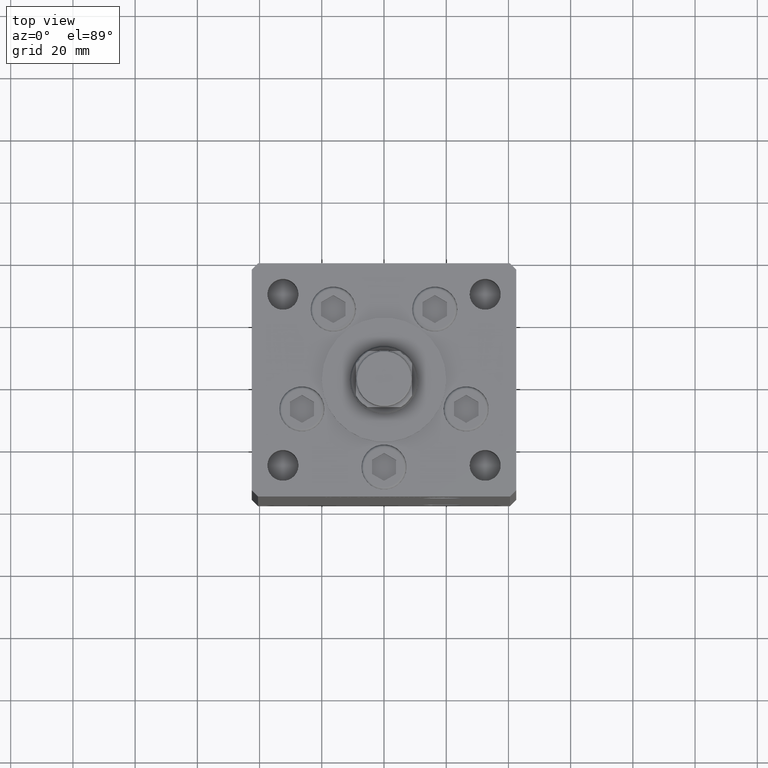
[diagram: clean part render]
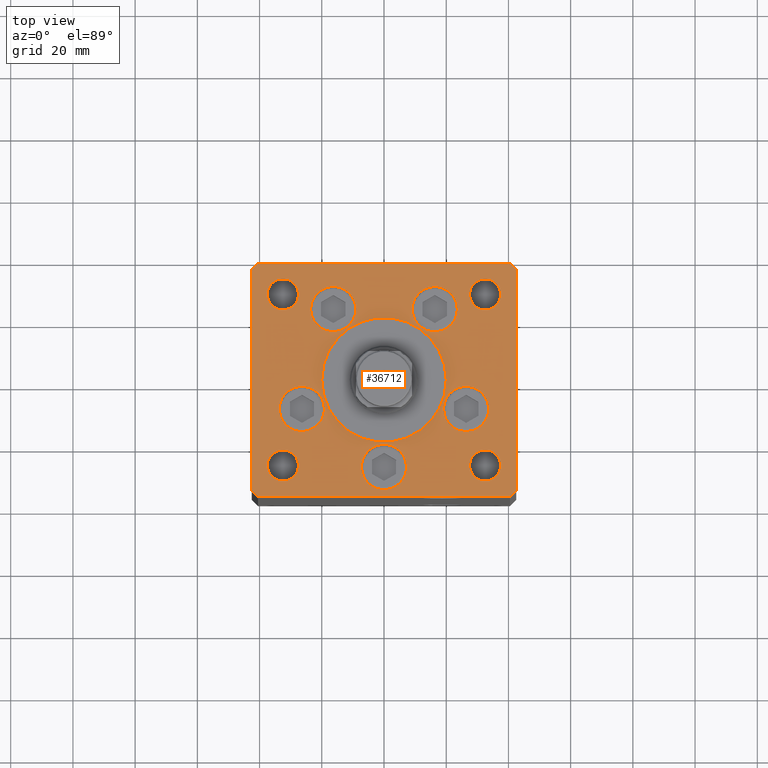
[diagram: same view with one face highlighted and labeled with its STEP entity id]
A machine part, top view. The second image highlights one B-rep face of the part: STEP entity #36712.
In plain terms, the highlighted planar face has unit normal (0, 0, 1).
Its self-contained STEP definition (entity closure, byte-faithful):
#70 = DIRECTION ( 'NONE',  ( 0.000000000000000000, 0.000000000000000000, 1.000000000000000000 ) ) ;
#326 = DIRECTION ( 'NONE',  ( 1.000000000000000000, 0.000000000000000000, 0.000000000000000000 ) ) ;
#378 = CARTESIAN_POINT ( 'NONE',  ( -23.57291334290544071, 22.74999999999999289, 0.000000000000000000 ) ) ;
#570 = AXIS2_PLACEMENT_3D ( 'NONE', #27981, #44247, #50372 ) ;
#675 = CARTESIAN_POINT ( 'NONE',  ( 32.50000000000000000, 27.49999999999999645, 0.000000000000000000 ) ) ;
#783 = DIRECTION ( 'NONE',  ( -0.7071067811865524577, 0.7071067811865426878, 0.000000000000000000 ) ) ;
#972 = DIRECTION ( 'NONE',  ( 1.000000000000000000, 0.000000000000000000, 0.000000000000000000 ) ) ;
#1152 = VECTOR ( 'NONE', #44665, 1000.000000000000000 ) ;
#1415 = CARTESIAN_POINT ( 'NONE',  ( 40.50000000000000711, 37.50000000000000711, 0.000000000000000000 ) ) ;
#1458 = DIRECTION ( 'NONE',  ( 1.000000000000000000, 0.000000000000000000, 0.000000000000000000 ) ) ;
#1477 = DIRECTION ( 'NONE',  ( -0.000000000000000000, -0.000000000000000000, -1.000000000000000000 ) ) ;
#1652 = CARTESIAN_POINT ( 'NONE',  ( -40.50000000000000000, 37.49999999999997158, 0.000000000000000000 ) ) ;
#1658 = AXIS2_PLACEMENT_3D ( 'NONE', #29404, #17956, #38201 ) ;
#1707 = EDGE_CURVE ( 'NONE', #43684, #28373, #18422, .T. ) ;
#1924 = CIRCLE ( 'NONE', #45276, 7.249999999999999112 ) ;
#2014 = CARTESIAN_POINT ( 'NONE',  ( -32.50000000000000000, 27.50000000000000711, 0.000000000000000000 ) ) ;
#2274 = EDGE_CURVE ( 'NONE', #16294, #17023, #8782, .T. ) ;
#2314 = VERTEX_POINT ( 'NONE', #9570 ) ;
#2420 = CARTESIAN_POINT ( 'NONE',  ( 32.50000000000000000, 27.49999999999999645, 0.000000000000000000 ) ) ;
#2544 = CARTESIAN_POINT ( 'NONE',  ( -40.50000000000000711, -37.50000000000003553, 0.000000000000000000 ) ) ;
#2557 = EDGE_CURVE ( 'NONE', #41039, #20062, #23431, .T. ) ;
#2841 = CIRCLE ( 'NONE', #30905, 5.000000000000000888 ) ;
#2856 = CARTESIAN_POINT ( 'NONE',  ( 20.00000000000000000, -4.489600305612522259E-15, 0.000000000000000000 ) ) ;
#3062 = CIRCLE ( 'NONE', #32808, 4.999999999999997335 ) ;
#3842 = CARTESIAN_POINT ( 'NONE',  ( 27.50000000000000355, -27.50000000000000355, 0.000000000000000000 ) ) ;
#4068 = CARTESIAN_POINT ( 'NONE',  ( 0.000000000000000000, 0.000000000000000000, 0.000000000000000000 ) ) ;
#4160 = DIRECTION ( 'NONE',  ( -1.000000000000000000, 0.000000000000000000, 0.000000000000000000 ) ) ;
#4262 = CARTESIAN_POINT ( 'NONE',  ( -42.50000000000000711, 35.50000000000000000, 0.000000000000000000 ) ) ;
#4292 = EDGE_CURVE ( 'NONE', #11787, #33166, #3062, .T. ) ;
#4334 = FACE_BOUND ( 'NONE', #25950, .T. ) ;
#4487 = ORIENTED_EDGE ( 'NONE', *, *, #43763, .F. ) ;
#4626 = ORIENTED_EDGE ( 'NONE', *, *, #46106, .T. ) ;
#4717 = EDGE_CURVE ( 'NONE', #47189, #2314, #26654, .T. ) ;
#4807 = CARTESIAN_POINT ( 'NONE',  ( -40.50000000000000000, 37.49999999999997158, 0.000000000000000000 ) ) ;
#4937 = DIRECTION ( 'NONE',  ( 0.000000000000000000, 0.000000000000000000, 1.000000000000000000 ) ) ;
#5511 = ORIENTED_EDGE ( 'NONE', *, *, #4717, .T. ) ;
#5566 = FACE_BOUND ( 'NONE', #22307, .T. ) ;
#5629 = AXIS2_PLACEMENT_3D ( 'NONE', #50014, #26520, #25722 ) ;
#5682 = AXIS2_PLACEMENT_3D ( 'NONE', #44295, #44030, #39527 ) ;
#5845 = ORIENTED_EDGE ( 'NONE', *, *, #41242, .F. ) ;
#6738 = VERTEX_POINT ( 'NONE', #1652 ) ;
#6814 = ORIENTED_EDGE ( 'NONE', *, *, #1707, .F. ) ;
#6928 = VERTEX_POINT ( 'NONE', #36767 ) ;
#7064 = EDGE_CURVE ( 'NONE', #6928, #8269, #51656, .T. ) ;
#7397 = CARTESIAN_POINT ( 'NONE',  ( 27.50000000000000355, 27.49999999999999645, 0.000000000000000000 ) ) ;
#7432 = ORIENTED_EDGE ( 'NONE', *, *, #32606, .F. ) ;
#7877 = ORIENTED_EDGE ( 'NONE', *, *, #20820, .F. ) ;
#7907 = ORIENTED_EDGE ( 'NONE', *, *, #13682, .F. ) ;
#8223 = AXIS2_PLACEMENT_3D ( 'NONE', #23133, #19405, #48702 ) ;
#8269 = VERTEX_POINT ( 'NONE', #16469 ) ;
#8455 = EDGE_CURVE ( 'NONE', #10755, #22415, #33770, .T. ) ;
#8522 = AXIS2_PLACEMENT_3D ( 'NONE', #2420, #50666, #26103 ) ;
#8782 = LINE ( 'NONE', #45537, #15906 ) ;
#8951 = ORIENTED_EDGE ( 'NONE', *, *, #44291, .T. ) ;
#9335 = DIRECTION ( 'NONE',  ( -0.7071067811865536790, -0.7071067811865414665, 0.000000000000000000 ) ) ;
#9570 = CARTESIAN_POINT ( 'NONE',  ( 42.50000000000000711, -35.49999999999992895, 0.000000000000000000 ) ) ;
#10086 = CARTESIAN_POINT ( 'NONE',  ( 40.50000000000001421, -37.49999999999992184, 0.000000000000000000 ) ) ;
#10755 = VERTEX_POINT ( 'NONE', #35228 ) ;
#10758 = CIRCLE ( 'NONE', #33713, 7.249999999999999112 ) ;
#11101 = ORIENTED_EDGE ( 'NONE', *, *, #30388, .F. ) ;
#11275 = CARTESIAN_POINT ( 'NONE',  ( 37.50000000000000000, -27.50000000000000355, 0.000000000000000000 ) ) ;
#11787 = VERTEX_POINT ( 'NONE', #3842 ) ;
#12094 = DIRECTION ( 'NONE',  ( -1.000000000000000000, -4.283267841918041508E-16, 0.000000000000000000 ) ) ;
#12168 = LINE ( 'NONE', #28406, #1152 ) ;
#12270 = VERTEX_POINT ( 'NONE', #51876 ) ;
#12507 = AXIS2_PLACEMENT_3D ( 'NONE', #45181, #40148, #4160 ) ;
#12538 = LINE ( 'NONE', #4807, #49526 ) ;
#12664 = EDGE_CURVE ( 'NONE', #28373, #43684, #27082, .T. ) ;
#12805 = ORIENTED_EDGE ( 'NONE', *, *, #12664, .F. ) ;
#12835 = AXIS2_PLACEMENT_3D ( 'NONE', #17566, #70, #16585 ) ;
#12966 = CARTESIAN_POINT ( 'NONE',  ( 0.000000000000000000, -28.00000000000000000, 0.000000000000000000 ) ) ;
#13008 = CARTESIAN_POINT ( 'NONE',  ( 42.50000000000001421, 35.50000000000002132, 0.000000000000000000 ) ) ;
#13108 = DIRECTION ( 'NONE',  ( -0.000000000000000000, -0.000000000000000000, -1.000000000000000000 ) ) ;
#13552 = DIRECTION ( 'NONE',  ( 1.000000000000000000, 0.000000000000000000, 0.000000000000000000 ) ) ;
#13573 = FACE_BOUND ( 'NONE', #49711, .T. ) ;
#13611 = CARTESIAN_POINT ( 'NONE',  ( -32.50000000000000000, -27.50000000000000355, 0.000000000000000000 ) ) ;
#13622 = AXIS2_PLACEMENT_3D ( 'NONE', #675, #4937, #1458 ) ;
#13644 = AXIS2_PLACEMENT_3D ( 'NONE', #24971, #41251, #29767 ) ;
#13682 = EDGE_CURVE ( 'NONE', #20062, #41039, #16934, .T. ) ;
#13952 = CARTESIAN_POINT ( 'NONE',  ( 37.50000000000000000, 27.49999999999999645, 0.000000000000000000 ) ) ;
#14213 = CIRCLE ( 'NONE', #51673, 4.999999999999997335 ) ;
#14714 = EDGE_LOOP ( 'NONE', ( #23551, #4487 ) ) ;
#14750 = VECTOR ( 'NONE', #35238, 1000.000000000000000 ) ;
#15095 = LINE ( 'NONE', #30544, #43438 ) ;
#15906 = VECTOR ( 'NONE', #783, 1000.000000000000000 ) ;
#16111 = CARTESIAN_POINT ( 'NONE',  ( -7.250000000000000000, -28.00000000000000000, 0.000000000000000000 ) ) ;
#16294 = VERTEX_POINT ( 'NONE', #13008 ) ;
#16416 = VERTEX_POINT ( 'NONE', #18597 ) ;
#16469 = CARTESIAN_POINT ( 'NONE',  ( 33.64865316429777664, -9.333333333333330373, 0.000000000000000000 ) ) ;
#16585 = DIRECTION ( 'NONE',  ( 1.000000000000000000, 0.000000000000000000, 0.000000000000000000 ) ) ;
#16934 = CIRCLE ( 'NONE', #32240, 20.00000000000000000 ) ;
#17023 = VERTEX_POINT ( 'NONE', #1415 ) ;
#17235 = EDGE_CURVE ( 'NONE', #20609, #32529, #46835, .T. ) ;
#17412 = EDGE_CURVE ( 'NONE', #32529, #20609, #50234, .T. ) ;
#17566 = CARTESIAN_POINT ( 'NONE',  ( 0.000000000000000000, -28.00000000000000000, 0.000000000000000000 ) ) ;
#17684 = DIRECTION ( 'NONE',  ( 0.000000000000000000, 0.000000000000000000, 1.000000000000000000 ) ) ;
#17956 = DIRECTION ( 'NONE',  ( 0.000000000000000000, 0.000000000000000000, 1.000000000000000000 ) ) ;
#18073 = EDGE_CURVE ( 'NONE', #6738, #27245, #12538, .T. ) ;
#18149 = DIRECTION ( 'NONE',  ( 1.000000000000000000, 0.000000000000000000, 0.000000000000000000 ) ) ;
#18422 = CIRCLE ( 'NONE', #5629, 7.249999999999999112 ) ;
#18597 = CARTESIAN_POINT ( 'NONE',  ( 7.250000000000000000, -28.00000000000000000, 0.000000000000000000 ) ) ;
#19229 = DIRECTION ( 'NONE',  ( 1.000000000000000000, 0.000000000000000000, 0.000000000000000000 ) ) ;
#19327 = CARTESIAN_POINT ( 'NONE',  ( 32.50000000000000000, -27.50000000000000355, 0.000000000000000000 ) ) ;
#19405 = DIRECTION ( 'NONE',  ( 0.000000000000000000, 0.000000000000000000, 1.000000000000000000 ) ) ;
#19837 = DIRECTION ( 'NONE',  ( -0.000000000000000000, -0.000000000000000000, -1.000000000000000000 ) ) ;
#20033 = CARTESIAN_POINT ( 'NONE',  ( -20.00000000000000000, -6.938893903907228378E-15, 0.000000000000000000 ) ) ;
#20062 = VERTEX_POINT ( 'NONE', #2856 ) ;
#20266 = ORIENTED_EDGE ( 'NONE', *, *, #17412, .F. ) ;
#20313 = FACE_BOUND ( 'NONE', #44200, .T. ) ;
#20574 = PLANE ( 'NONE',  #27318 ) ;
#20609 = VERTEX_POINT ( 'NONE', #13952 ) ;
#20646 = EDGE_CURVE ( 'NONE', #8269, #6928, #10758, .T. ) ;
#20820 = EDGE_CURVE ( 'NONE', #26577, #47781, #32073, .T. ) ;
#21050 = ORIENTED_EDGE ( 'NONE', *, *, #8455, .T. ) ;
#21105 = ORIENTED_EDGE ( 'NONE', *, *, #36600, .F. ) ;
#21167 = EDGE_LOOP ( 'NONE', ( #39156, #8951, #5511, #24398, #21890, #52435, #31099, #31228 ) ) ;
#21727 = EDGE_CURVE ( 'NONE', #33166, #11787, #14213, .T. ) ;
#21797 = CARTESIAN_POINT ( 'NONE',  ( -9.072913342905442491, 22.74999999999999289, 0.000000000000000000 ) ) ;
#21818 = CARTESIAN_POINT ( 'NONE',  ( -27.50000000000000000, -27.50000000000000355, 0.000000000000000000 ) ) ;
#21890 = ORIENTED_EDGE ( 'NONE', *, *, #2274, .T. ) ;
#22152 = DIRECTION ( 'NONE',  ( -1.000000000000000000, 0.000000000000000000, 0.000000000000000000 ) ) ;
#22307 = EDGE_LOOP ( 'NONE', ( #36864, #7877 ) ) ;
#22367 = CIRCLE ( 'NONE', #47072, 7.249999999999999112 ) ;
#22415 = VERTEX_POINT ( 'NONE', #50307 ) ;
#22647 = DIRECTION ( 'NONE',  ( 1.000000000000000000, 0.000000000000000000, 0.000000000000000000 ) ) ;
#23133 = CARTESIAN_POINT ( 'NONE',  ( 0.000000000000000000, -6.938893903907228378E-15, 0.000000000000000000 ) ) ;
#23139 = DIRECTION ( 'NONE',  ( 9.773090005503145261E-17, 1.000000000000000000, 0.000000000000000000 ) ) ;
#23394 = LINE ( 'NONE', #51951, #33131 ) ;
#23431 = CIRCLE ( 'NONE', #8223, 20.00000000000000000 ) ;
#23551 = ORIENTED_EDGE ( 'NONE', *, *, #32904, .F. ) ;
#24295 = FACE_BOUND ( 'NONE', #14714, .T. ) ;
#24398 = ORIENTED_EDGE ( 'NONE', *, *, #28816, .T. ) ;
#24557 = FACE_BOUND ( 'NONE', #31178, .T. ) ;
#24600 = CIRCLE ( 'NONE', #1658, 5.000000000000000888 ) ;
#24820 = FACE_BOUND ( 'NONE', #26210, .T. ) ;
#24971 = CARTESIAN_POINT ( 'NONE',  ( 16.32291334290544071, 22.74999999999999289, 0.000000000000000000 ) ) ;
#25645 = VERTEX_POINT ( 'NONE', #27041 ) ;
#25722 = DIRECTION ( 'NONE',  ( 1.000000000000000000, 0.000000000000000000, 0.000000000000000000 ) ) ;
#25950 = EDGE_LOOP ( 'NONE', ( #30240, #34717 ) ) ;
#26066 = DIRECTION ( 'NONE',  ( 0.000000000000000000, 0.000000000000000000, 1.000000000000000000 ) ) ;
#26103 = DIRECTION ( 'NONE',  ( 1.000000000000000000, 0.000000000000000000, 0.000000000000000000 ) ) ;
#26210 = EDGE_LOOP ( 'NONE', ( #4626, #21050 ) ) ;
#26520 = DIRECTION ( 'NONE',  ( 0.000000000000000000, 0.000000000000000000, 1.000000000000000000 ) ) ;
#26577 = VERTEX_POINT ( 'NONE', #378 ) ;
#26654 = LINE ( 'NONE', #31449, #34537 ) ;
#27041 = CARTESIAN_POINT ( 'NONE',  ( 23.57291334290544071, 22.74999999999999289, 0.000000000000000000 ) ) ;
#27082 = CIRCLE ( 'NONE', #40703, 7.249999999999999112 ) ;
#27245 = VERTEX_POINT ( 'NONE', #4262 ) ;
#27318 = AXIS2_PLACEMENT_3D ( 'NONE', #4068, #37811, #326 ) ;
#27572 = VECTOR ( 'NONE', #12094, 1000.000000000000000 ) ;
#27981 = CARTESIAN_POINT ( 'NONE',  ( 26.39865316429777664, -9.333333333333330373, 0.000000000000000000 ) ) ;
#28300 = FACE_BOUND ( 'NONE', #44396, .T. ) ;
#28373 = VERTEX_POINT ( 'NONE', #46508 ) ;
#28406 = CARTESIAN_POINT ( 'NONE',  ( -40.50000000000000711, -37.50000000000003553, 0.000000000000000000 ) ) ;
#28590 = LINE ( 'NONE', #32335, #27572 ) ;
#28816 = EDGE_CURVE ( 'NONE', #2314, #16294, #23394, .T. ) ;
#29228 = VERTEX_POINT ( 'NONE', #51497 ) ;
#29341 = CARTESIAN_POINT ( 'NONE',  ( 16.32291334290544071, 22.74999999999999289, 0.000000000000000000 ) ) ;
#29389 = VERTEX_POINT ( 'NONE', #21818 ) ;
#29404 = CARTESIAN_POINT ( 'NONE',  ( -32.50000000000000000, -27.50000000000000355, 0.000000000000000000 ) ) ;
#29767 = DIRECTION ( 'NONE',  ( 1.000000000000000000, 0.000000000000000000, 0.000000000000000000 ) ) ;
#29794 = CIRCLE ( 'NONE', #13644, 7.249999999999999112 ) ;
#29815 = FACE_BOUND ( 'NONE', #41577, .T. ) ;
#30240 = ORIENTED_EDGE ( 'NONE', *, *, #20646, .F. ) ;
#30388 = EDGE_CURVE ( 'NONE', #38839, #25645, #29794, .T. ) ;
#30401 = DIRECTION ( 'NONE',  ( 0.000000000000000000, 0.000000000000000000, 1.000000000000000000 ) ) ;
#30544 = CARTESIAN_POINT ( 'NONE',  ( -42.50000000000000000, -35.50000000000004263, 0.000000000000000000 ) ) ;
#30785 = VERTEX_POINT ( 'NONE', #2544 ) ;
#30905 = AXIS2_PLACEMENT_3D ( 'NONE', #13611, #38115, #22647 ) ;
#31099 = ORIENTED_EDGE ( 'NONE', *, *, #18073, .T. ) ;
#31178 = EDGE_LOOP ( 'NONE', ( #5845, #11101 ) ) ;
#31228 = ORIENTED_EDGE ( 'NONE', *, *, #43531, .T. ) ;
#31449 = CARTESIAN_POINT ( 'NONE',  ( 40.50000000000001421, -37.49999999999992184, 0.000000000000000000 ) ) ;
#32073 = CIRCLE ( 'NONE', #5682, 7.249999999999999112 ) ;
#32240 = AXIS2_PLACEMENT_3D ( 'NONE', #34690, #39229, #19229 ) ;
#32335 = CARTESIAN_POINT ( 'NONE',  ( 40.50000000000000711, 37.50000000000000711, 0.000000000000000000 ) ) ;
#32529 = VERTEX_POINT ( 'NONE', #7397 ) ;
#32606 = EDGE_CURVE ( 'NONE', #40852, #16416, #45920, .T. ) ;
#32808 = AXIS2_PLACEMENT_3D ( 'NONE', #19327, #19837, #44085 ) ;
#32904 = EDGE_CURVE ( 'NONE', #29389, #29228, #24600, .T. ) ;
#33131 = VECTOR ( 'NONE', #23139, 1000.000000000000000 ) ;
#33166 = VERTEX_POINT ( 'NONE', #11275 ) ;
#33713 = AXIS2_PLACEMENT_3D ( 'NONE', #50744, #17684, #46188 ) ;
#33770 = CIRCLE ( 'NONE', #12507, 5.000000000000004441 ) ;
#33783 = ORIENTED_EDGE ( 'NONE', *, *, #17235, .F. ) ;
#33998 = EDGE_CURVE ( 'NONE', #12270, #30785, #15095, .T. ) ;
#34079 = DIRECTION ( 'NONE',  ( 1.000000000000000000, 0.000000000000000000, 0.000000000000000000 ) ) ;
#34537 = VECTOR ( 'NONE', #35961, 1000.000000000000114 ) ;
#34690 = CARTESIAN_POINT ( 'NONE',  ( 0.000000000000000000, -6.938893903907228378E-15, 0.000000000000000000 ) ) ;
#34717 = ORIENTED_EDGE ( 'NONE', *, *, #7064, .F. ) ;
#34985 = CIRCLE ( 'NONE', #12835, 7.250000000000000000 ) ;
#35228 = CARTESIAN_POINT ( 'NONE',  ( -37.50000000000000711, 27.50000000000000711, 0.000000000000000000 ) ) ;
#35238 = DIRECTION ( 'NONE',  ( 9.773090005503134168E-17, -1.000000000000000000, 0.000000000000000000 ) ) ;
#35961 = DIRECTION ( 'NONE',  ( 0.7071067811865474617, 0.7071067811865474617, 0.000000000000000000 ) ) ;
#36600 = EDGE_CURVE ( 'NONE', #16416, #40852, #34985, .T. ) ;
#36712 = ADVANCED_FACE ( 'NONE', ( #13573, #5566, #24557, #4334, #28300, #20313, #24820, #29815, #24295, #40572, #41097 ), #20574, .T. ) ;
#36767 = CARTESIAN_POINT ( 'NONE',  ( 19.14865316429777664, -9.333333333333328596, 0.000000000000000000 ) ) ;
#36864 = ORIENTED_EDGE ( 'NONE', *, *, #47690, .F. ) ;
#37811 = DIRECTION ( 'NONE',  ( -0.000000000000000000, 0.000000000000000000, 1.000000000000000000 ) ) ;
#38115 = DIRECTION ( 'NONE',  ( 0.000000000000000000, 0.000000000000000000, 1.000000000000000000 ) ) ;
#38201 = DIRECTION ( 'NONE',  ( 1.000000000000000000, 0.000000000000000000, 0.000000000000000000 ) ) ;
#38526 = DIRECTION ( 'NONE',  ( 0.000000000000000000, 0.000000000000000000, 1.000000000000000000 ) ) ;
#38595 = DIRECTION ( 'NONE',  ( 0.000000000000000000, 0.000000000000000000, 1.000000000000000000 ) ) ;
#38839 = VERTEX_POINT ( 'NONE', #44779 ) ;
#39156 = ORIENTED_EDGE ( 'NONE', *, *, #33998, .T. ) ;
#39229 = DIRECTION ( 'NONE',  ( 0.000000000000000000, 0.000000000000000000, 1.000000000000000000 ) ) ;
#39527 = DIRECTION ( 'NONE',  ( 1.000000000000000000, 0.000000000000000000, 0.000000000000000000 ) ) ;
#40016 = EDGE_LOOP ( 'NONE', ( #43817, #46776 ) ) ;
#40148 = DIRECTION ( 'NONE',  ( -0.000000000000000000, -0.000000000000000000, -1.000000000000000000 ) ) ;
#40572 = FACE_OUTER_BOUND ( 'NONE', #21167, .T. ) ;
#40703 = AXIS2_PLACEMENT_3D ( 'NONE', #46070, #26066, #34079 ) ;
#40852 = VERTEX_POINT ( 'NONE', #16111 ) ;
#41039 = VERTEX_POINT ( 'NONE', #20033 ) ;
#41097 = FACE_BOUND ( 'NONE', #40016, .T. ) ;
#41207 = AXIS2_PLACEMENT_3D ( 'NONE', #2014, #1477, #49737 ) ;
#41242 = EDGE_CURVE ( 'NONE', #25645, #38839, #1924, .T. ) ;
#41251 = DIRECTION ( 'NONE',  ( 0.000000000000000000, 0.000000000000000000, 1.000000000000000000 ) ) ;
#41333 = CARTESIAN_POINT ( 'NONE',  ( -19.14865316429777664, -9.333333333333330373, 0.000000000000000000 ) ) ;
#41577 = EDGE_LOOP ( 'NONE', ( #33783, #20266 ) ) ;
#42860 = CARTESIAN_POINT ( 'NONE',  ( -16.32291334290544071, 22.74999999999999289, 0.000000000000000000 ) ) ;
#43395 = AXIS2_PLACEMENT_3D ( 'NONE', #12966, #38526, #972 ) ;
#43438 = VECTOR ( 'NONE', #51103, 1000.000000000000000 ) ;
#43505 = CARTESIAN_POINT ( 'NONE',  ( -42.50000000000000711, 35.50000000000000000, 0.000000000000000000 ) ) ;
#43531 = EDGE_CURVE ( 'NONE', #27245, #12270, #52310, .T. ) ;
#43684 = VERTEX_POINT ( 'NONE', #41333 ) ;
#43763 = EDGE_CURVE ( 'NONE', #29228, #29389, #2841, .T. ) ;
#43817 = ORIENTED_EDGE ( 'NONE', *, *, #21727, .T. ) ;
#44030 = DIRECTION ( 'NONE',  ( 0.000000000000000000, 0.000000000000000000, 1.000000000000000000 ) ) ;
#44085 = DIRECTION ( 'NONE',  ( -1.000000000000000000, 0.000000000000000000, 0.000000000000000000 ) ) ;
#44200 = EDGE_LOOP ( 'NONE', ( #6814, #12805 ) ) ;
#44247 = DIRECTION ( 'NONE',  ( 0.000000000000000000, 0.000000000000000000, 1.000000000000000000 ) ) ;
#44291 = EDGE_CURVE ( 'NONE', #30785, #47189, #12168, .T. ) ;
#44295 = CARTESIAN_POINT ( 'NONE',  ( -16.32291334290544071, 22.74999999999999289, 0.000000000000000000 ) ) ;
#44396 = EDGE_LOOP ( 'NONE', ( #21105, #7432 ) ) ;
#44665 = DIRECTION ( 'NONE',  ( 1.000000000000000000, 1.370645709413773283E-15, 0.000000000000000000 ) ) ;
#44779 = CARTESIAN_POINT ( 'NONE',  ( 9.072913342905442491, 22.74999999999999289, 0.000000000000000000 ) ) ;
#45181 = CARTESIAN_POINT ( 'NONE',  ( -32.50000000000000000, 27.50000000000000711, 0.000000000000000000 ) ) ;
#45276 = AXIS2_PLACEMENT_3D ( 'NONE', #29341, #30401, #18149 ) ;
#45537 = CARTESIAN_POINT ( 'NONE',  ( 42.50000000000001421, 35.50000000000002132, 0.000000000000000000 ) ) ;
#45565 = EDGE_CURVE ( 'NONE', #17023, #6738, #28590, .T. ) ;
#45920 = CIRCLE ( 'NONE', #43395, 7.250000000000000000 ) ;
#46070 = CARTESIAN_POINT ( 'NONE',  ( -26.39865316429777664, -9.333333333333330373, 0.000000000000000000 ) ) ;
#46106 = EDGE_CURVE ( 'NONE', #22415, #10755, #49704, .T. ) ;
#46188 = DIRECTION ( 'NONE',  ( 1.000000000000000000, 0.000000000000000000, 0.000000000000000000 ) ) ;
#46508 = CARTESIAN_POINT ( 'NONE',  ( -33.64865316429777664, -9.333333333333328596, 0.000000000000000000 ) ) ;
#46776 = ORIENTED_EDGE ( 'NONE', *, *, #4292, .T. ) ;
#46835 = CIRCLE ( 'NONE', #8522, 4.999999999999997335 ) ;
#47072 = AXIS2_PLACEMENT_3D ( 'NONE', #42860, #38595, #13552 ) ;
#47189 = VERTEX_POINT ( 'NONE', #10086 ) ;
#47690 = EDGE_CURVE ( 'NONE', #47781, #26577, #22367, .T. ) ;
#47781 = VERTEX_POINT ( 'NONE', #21797 ) ;
#47944 = ORIENTED_EDGE ( 'NONE', *, *, #2557, .F. ) ;
#48702 = DIRECTION ( 'NONE',  ( 1.000000000000000000, 0.000000000000000000, 0.000000000000000000 ) ) ;
#49526 = VECTOR ( 'NONE', #9335, 1000.000000000000000 ) ;
#49634 = CARTESIAN_POINT ( 'NONE',  ( 32.50000000000000000, -27.50000000000000355, 0.000000000000000000 ) ) ;
#49704 = CIRCLE ( 'NONE', #41207, 5.000000000000004441 ) ;
#49711 = EDGE_LOOP ( 'NONE', ( #47944, #7907 ) ) ;
#49737 = DIRECTION ( 'NONE',  ( -1.000000000000000000, 0.000000000000000000, 0.000000000000000000 ) ) ;
#50014 = CARTESIAN_POINT ( 'NONE',  ( -26.39865316429777664, -9.333333333333330373, 0.000000000000000000 ) ) ;
#50234 = CIRCLE ( 'NONE', #13622, 4.999999999999997335 ) ;
#50307 = CARTESIAN_POINT ( 'NONE',  ( -27.50000000000000000, 27.50000000000000711, 0.000000000000000000 ) ) ;
#50372 = DIRECTION ( 'NONE',  ( 1.000000000000000000, 0.000000000000000000, 0.000000000000000000 ) ) ;
#50666 = DIRECTION ( 'NONE',  ( 0.000000000000000000, 0.000000000000000000, 1.000000000000000000 ) ) ;
#50744 = CARTESIAN_POINT ( 'NONE',  ( 26.39865316429777664, -9.333333333333330373, 0.000000000000000000 ) ) ;
#51103 = DIRECTION ( 'NONE',  ( 0.7071067811865487940, -0.7071067811865463515, 0.000000000000000000 ) ) ;
#51497 = CARTESIAN_POINT ( 'NONE',  ( -37.50000000000000711, -27.50000000000000355, 0.000000000000000000 ) ) ;
#51656 = CIRCLE ( 'NONE', #570, 7.249999999999999112 ) ;
#51673 = AXIS2_PLACEMENT_3D ( 'NONE', #49634, #13108, #22152 ) ;
#51876 = CARTESIAN_POINT ( 'NONE',  ( -42.50000000000000000, -35.50000000000004263, 0.000000000000000000 ) ) ;
#51951 = CARTESIAN_POINT ( 'NONE',  ( 42.50000000000000711, -35.49999999999992895, 0.000000000000000000 ) ) ;
#52310 = LINE ( 'NONE', #43505, #14750 ) ;
#52435 = ORIENTED_EDGE ( 'NONE', *, *, #45565, .T. ) ;